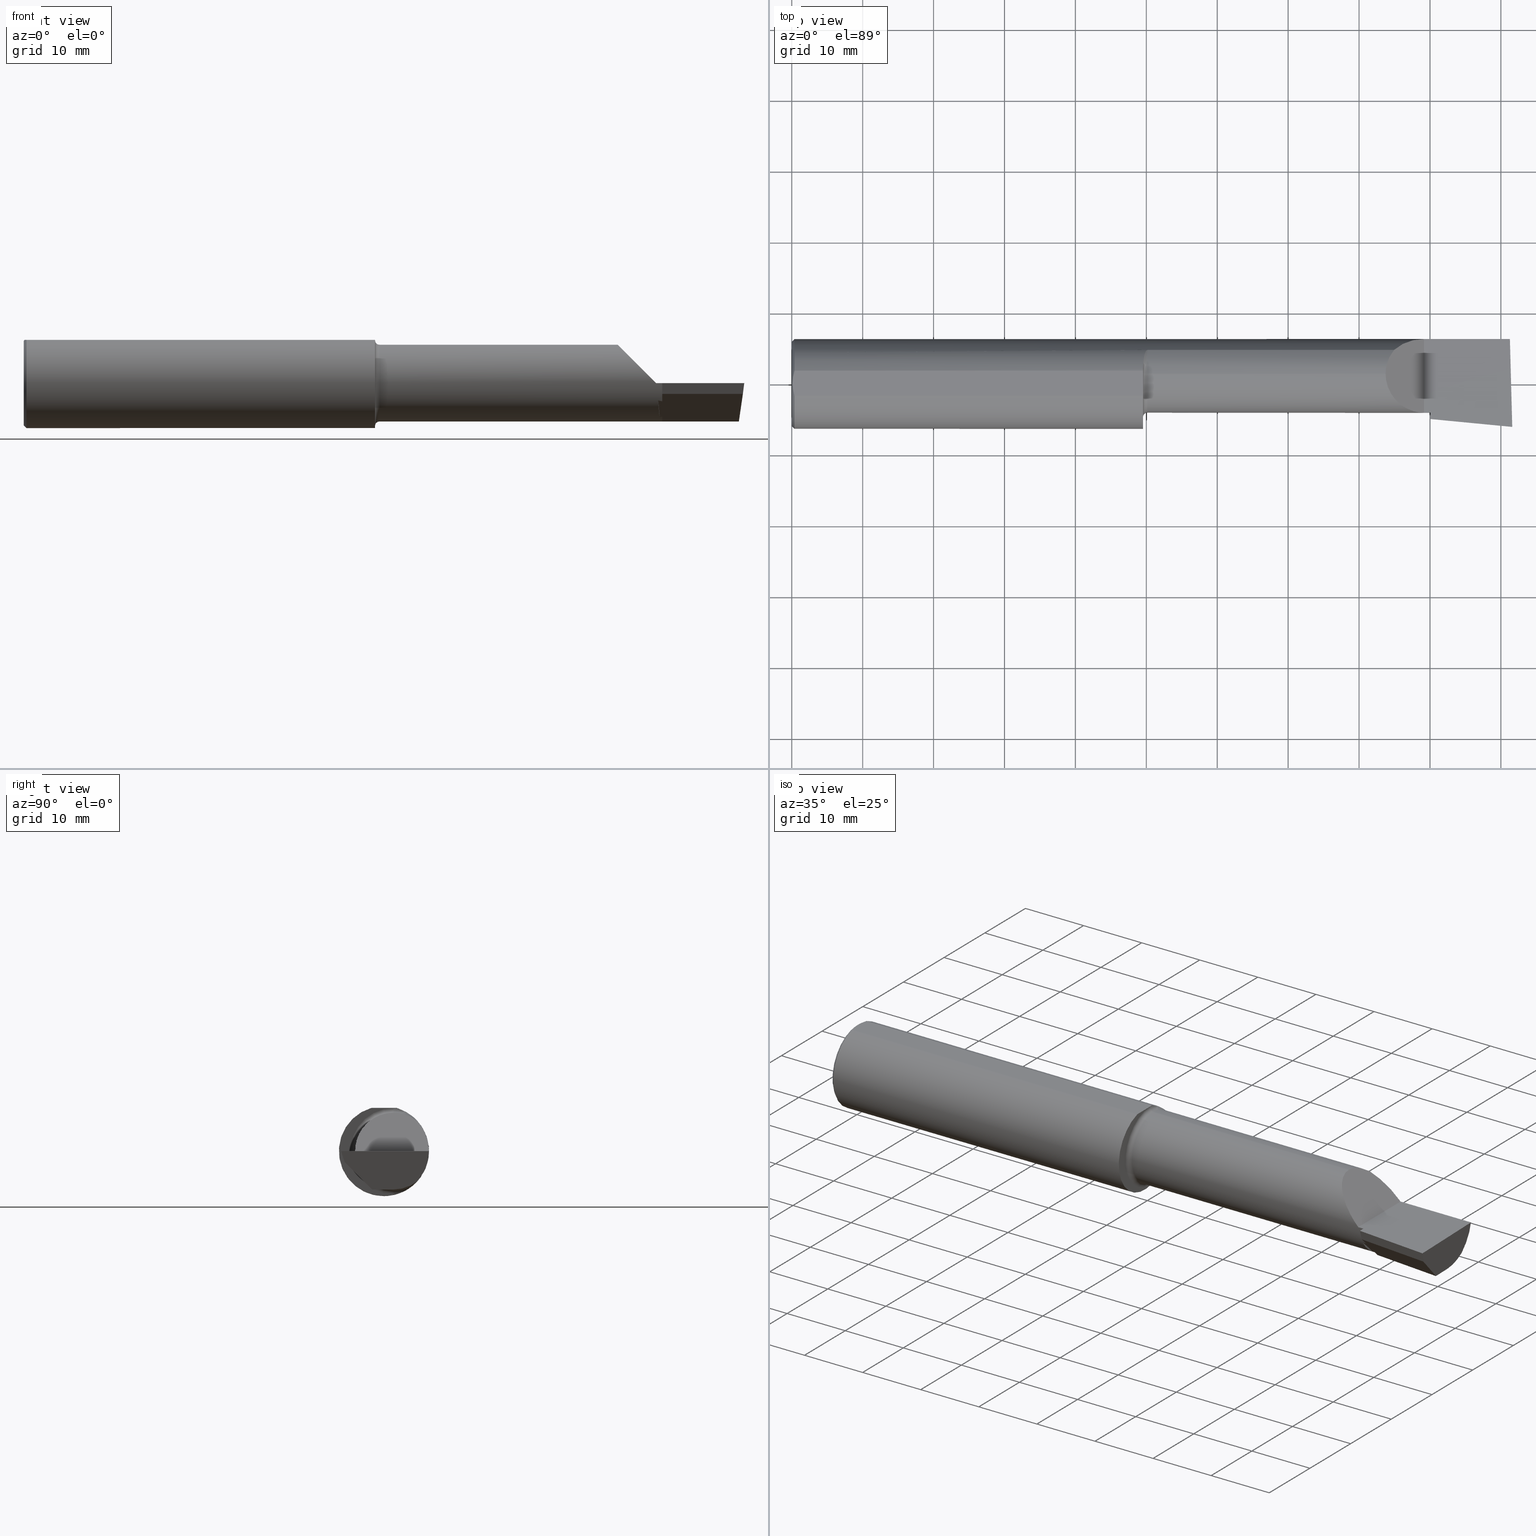
[diagram: canonical four-view strip — front | top / right | iso, engineering-drawing reading convention]
A machine part, canonical four-view strip (front | top / right | iso — engineering-drawing reading convention). The complete STEP part file that produces these views, byte-faithful:
ISO-10303-21;
HEADER;
FILE_DESCRIPTION (( 'STEP AP203' ),
    '1' );
FILE_NAME ('212151-LHB4902000.STEP',
    '2024-08-27T21:23:20',
    ( '' ),
    ( '' ),
    'SwSTEP 2.0',
    'SolidWorks 2024',
    '' );
FILE_SCHEMA (( 'CONFIG_CONTROL_DESIGN' ));
ENDSEC;

DATA;
#1 = CIRCLE ( 'NONE', #27, 0.2131500000000002282 ) ;
#2 = CARTESIAN_POINT ( 'NONE',  ( 3.296849999999997394, 0.05299999999999998462, 0.2131500000000000894 ) ) ;
#3 = ORIENTED_EDGE ( 'NONE', *, *, #231, .F. ) ;
#4 = CYLINDRICAL_SURFACE ( 'NONE', #106, 0.2498499999999999888 ) ;
#5 = ORIENTED_EDGE ( 'NONE', *, *, #553, .F. ) ;
#6 = CC_DESIGN_APPROVAL ( #749, ( #204 ) ) ;
#7 = DIRECTION ( 'NONE',  ( -0.02677973311239342791, 0.9996413586354002678, -2.562123829027519895E-16 ) ) ;
#8 = EDGE_CURVE ( 'NONE', #708, #86, #109, .T. ) ;
#9 = CARTESIAN_POINT ( 'NONE',  ( 4.028162759442342811, -0.2374125321900709407, 0.2380275191859495543 ) ) ;
#10 = EDGE_LOOP ( 'NONE', ( #661, #247, #233, #287 ) ) ;
#11 = DIRECTION ( 'NONE',  ( 1.000000000000000000, 0.000000000000000000, 0.000000000000000000 ) ) ;
#12 = CARTESIAN_POINT ( 'NONE',  ( 0.000000000000000000, 0.000000000000000000, 0.000000000000000000 ) ) ;
#13 = VERTEX_POINT ( 'NONE', #49 ) ;
#14 = CARTESIAN_POINT ( 'NONE',  ( 1.970138573936399906, 0.1849738682364315823, -0.1679602226613267635 ) ) ;
#15 = ORIENTED_EDGE ( 'NONE', *, *, #587, .T. ) ;
#16 = AXIS2_PLACEMENT_3D ( 'NONE', #332, #43, #453 ) ;
#17 = CARTESIAN_POINT ( 'NONE',  ( 0.009312860630924867100, 0.04712480857212034135, 0.2398500000000000076 ) ) ;
#18 = AXIS2_PLACEMENT_3D ( 'NONE', #418, #716, #414 ) ;
#19 = EDGE_CURVE ( 'NONE', #726, #95, #284, .T. ) ;
#20 = CARTESIAN_POINT ( 'NONE',  ( 1.957341173198633433, 0.1582250006961543887, -0.1936724403215138446 ) ) ;
#21 = ORIENTED_EDGE ( 'NONE', *, *, #417, .F. ) ;
#22 = CARTESIAN_POINT ( 'NONE',  ( 3.531082512009719565, -0.04783050615766656910, -0.1877927888072083717 ) ) ;
#23 = ORIENTED_EDGE ( 'NONE', *, *, #732, .T. ) ;
#24 = EDGE_CURVE ( 'NONE', #134, #599, #90, .T. ) ;
#25 = CARTESIAN_POINT ( 'NONE',  ( 3.983858394183930063, -0.1964039090909503738, -0.1268853457175435906 ) ) ;
#26 = CARTESIAN_POINT ( 'NONE',  ( 1.975000000000000089, 0.05300000000000001238, -0.2381500000000001949 ) ) ;
#27 = AXIS2_PLACEMENT_3D ( 'NONE', #502, #608, #83 ) ;
#28 = ORIENTED_EDGE ( 'NONE', *, *, #19, .F. ) ;
#29 = DIRECTION ( 'NONE',  ( 0.000000000000000000, 0.000000000000000000, 1.000000000000000000 ) ) ;
#30 = VECTOR ( 'NONE', #754, 39.37007874015748143 ) ;
#31 = ORIENTED_EDGE ( 'NONE', *, *, #645, .F. ) ;
#32 = LINE ( 'NONE', #25, #100 ) ;
#33 = DIRECTION ( 'NONE',  ( -1.000000000000000000, -0.000000000000000000, -0.000000000000000000 ) ) ;
#34 = VECTOR ( 'NONE', #61, 39.37007874015748143 ) ;
#35 = ADVANCED_FACE ( 'NONE', ( #209 ), #516, .F. ) ;
#36 = ORIENTED_EDGE ( 'NONE', *, *, #417, .T. ) ;
#37 = CARTESIAN_POINT ( 'NONE',  ( 1.950000000000000178, 0.000000000000000000, 0.000000000000000000 ) ) ;
#38 = DIRECTION ( 'NONE',  ( -0.000000000000000000, 0.000000000000000000, 1.000000000000000000 ) ) ;
#39 = EDGE_CURVE ( 'NONE', #13, #306, #517, .T. ) ;
#40 = ORIENTED_EDGE ( 'NONE', *, *, #553, .T. ) ;
#41 = DIRECTION ( 'NONE',  ( 0.000000000000000000, 0.000000000000000000, 1.000000000000000000 ) ) ;
#42 = DIRECTION ( 'NONE',  ( 0.000000000000000000, 0.000000000000000000, 1.000000000000000000 ) ) ;
#43 = DIRECTION ( 'NONE',  ( 0.000000000000000000, -1.000000000000000000, 0.000000000000000000 ) ) ;
#44 = ADVANCED_FACE ( 'NONE', ( #699 ), #156, .F. ) ;
#45 = DIRECTION ( 'NONE',  ( 0.000000000000000000, 0.000000000000000000, 1.000000000000000000 ) ) ;
#46 = CARTESIAN_POINT ( 'NONE',  ( 3.544999999999999485, -0.1345157694617464539, -0.1013447517297721839 ) ) ;
#47 = CALENDAR_DATE ( 2024, 27, 8 ) ;
#48 = EDGE_CURVE ( 'NONE', #313, #345, #747, .T. ) ;
#49 = CARTESIAN_POINT ( 'NONE',  ( 1.950000000000000178, 0.08036415094339534326, -0.2365726648265753795 ) ) ;
#50 = PERSON_AND_ORGANIZATION ( #492, #60 ) ;
#51 = CARTESIAN_POINT ( 'NONE',  ( 1.975000000000000089, 0.1868028301886779929, 0.1659208399614101603 ) ) ;
#52 = LINE ( 'NONE', #514, #190 ) ;
#53 = PERSON_AND_ORGANIZATION ( #492, #60 ) ;
#54 = VECTOR ( 'NONE', #595, 39.37007874015748143 ) ;
#55 = VECTOR ( 'NONE', #425, 39.37007874015748143 ) ;
#56 = CARTESIAN_POINT ( 'NONE',  ( 3.965646124279056828, 0.1021668565906567044, -0.2131500000000000339 ) ) ;
#57 =( BOUNDED_CURVE ( )  B_SPLINE_CURVE ( 3, ( #199, #194, #427, #22 ),
 .UNSPECIFIED., .F., .T. ) 
 B_SPLINE_CURVE_WITH_KNOTS ( ( 4, 4 ),
 ( 3.425081864342414573, 3.440661644967334176 ),
 .UNSPECIFIED. ) 
 CURVE ( )  GEOMETRIC_REPRESENTATION_ITEM ( )  RATIONAL_B_SPLINE_CURVE ( ( 1.000000000000000000, 0.9999797726385939445, 0.9999797726385939445, 1.000000000000000000 ) ) 
 REPRESENTATION_ITEM ( '' )  );
#58 = ORIENTED_EDGE ( 'NONE', *, *, #255, .T. ) ;
#59 = AXIS2_PLACEMENT_3D ( 'NONE', #686, #214, #38 ) ;
#60 = ORGANIZATION ( 'UNSPECIFIED', 'UNSPECIFIED', '' ) ;
#61 = DIRECTION ( 'NONE',  ( 0.000000000000000000, -0.7025528302622683352, 0.7116315905652843554 ) ) ;
#62 =( BOUNDED_CURVE ( )  B_SPLINE_CURVE ( 3, ( #155, #262, #624, #404 ),
 .UNSPECIFIED., .F., .F. ) 
 B_SPLINE_CURVE_WITH_KNOTS ( ( 4, 4 ),
 ( 0.6220170400679905232, 1.348282100702874908 ),
 .UNSPECIFIED. ) 
 CURVE ( )  GEOMETRIC_REPRESENTATION_ITEM ( )  RATIONAL_B_SPLINE_CURVE ( ( 1.000000000000000000, 0.9565258159410993111, 0.9565258159410993111, 1.000000000000000000 ) ) 
 REPRESENTATION_ITEM ( '' )  );
#63 = ORIENTED_EDGE ( 'NONE', *, *, #65, .F. ) ;
#64 = DIRECTION ( 'NONE',  ( 1.000000000000000000, 0.000000000000000000, 0.000000000000000000 ) ) ;
#65 = EDGE_CURVE ( 'NONE', #300, #619, #631, .T. ) ;
#66 = CARTESIAN_POINT ( 'NONE',  ( 3.544999999999999485, -0.1345157694617464539, -0.1013447517297721839 ) ) ;
#67 = EDGE_LOOP ( 'NONE', ( #77, #742, #625, #112 ) ) ;
#68 = PLANE ( 'NONE',  #482 ) ;
#69 = AXIS2_PLACEMENT_3D ( 'NONE', #717, #147, #133 ) ;
#70 = CARTESIAN_POINT ( 'NONE',  ( 3.522499172395930245, -0.1369718963205479589, -0.09666230448512491691 ) ) ;
#71 = VERTEX_POINT ( 'NONE', #46 ) ;
#72 = VECTOR ( 'NONE', #515, 39.37007874015748143 ) ;
#73 = DIRECTION ( 'NONE',  ( 0.000000000000000000, 0.000000000000000000, -1.000000000000000000 ) ) ;
#74 = CARTESIAN_POINT ( 'NONE',  ( 1.962765002235293599, 0.1743275501927397109, 0.1790622127600486335 ) ) ;
#75 = EDGE_LOOP ( 'NONE', ( #644, #368, #550, #201, #484, #242, #657, #559 ) ) ;
#76 = LINE ( 'NONE', #310, #273 ) ;
#77 = ORIENTED_EDGE ( 'NONE', *, *, #402, .F. ) ;
#78 = DIRECTION ( 'NONE',  ( 0.9953961983671787417, -0.09584575252022418945, -1.501092988330048720E-16 ) ) ;
#79 = CIRCLE ( 'NONE', #347, 0.2498499999999999888 ) ;
#80 = DIRECTION ( 'NONE',  ( 0.000000000000000000, 0.000000000000000000, -1.000000000000000000 ) ) ;
#81 = CARTESIAN_POINT ( 'NONE',  ( 0.01181966702888968997, 0.05862357455657477706, 0.2398500000000000354 ) ) ;
#82 = ORIENTED_EDGE ( 'NONE', *, *, #677, .T. ) ;
#83 = DIRECTION ( 'NONE',  ( 0.000000000000000000, 0.000000000000000000, 1.000000000000000000 ) ) ;
#84 = ORIENTED_EDGE ( 'NONE', *, *, #446, .F. ) ;
#85 = CARTESIAN_POINT ( 'NONE',  ( 0.004999999999999696527, 5.665694022114171174E-17, 0.2398500000000000076 ) ) ;
#86 = VERTEX_POINT ( 'NONE', #275 ) ;
#87 = DIRECTION ( 'NONE',  ( 0.000000000000000000, 0.000000000000000000, 1.000000000000000000 ) ) ;
#88 = EDGE_CURVE ( 'NONE', #609, #708, #52, .T. ) ;
#89 = FACE_OUTER_BOUND ( 'NONE', #666, .T. ) ;
#90 = CIRCLE ( 'NONE', #578, 0.2498499999999999888 ) ;
#91 = ORIENTED_EDGE ( 'NONE', *, *, #431, .F. ) ;
#92 = CARTESIAN_POINT ( 'NONE',  ( 0.01499999999999998904, 0.06997856814768362022, 0.2398500000000000076 ) ) ;
#93 = EDGE_CURVE ( 'NONE', #609, #433, #217, .T. ) ;
#94 = CARTESIAN_POINT ( 'NONE',  ( 1.975000000000000089, 0.05299999999999998462, 0.000000000000000000 ) ) ;
#95 = VERTEX_POINT ( 'NONE', #340 ) ;
#96 = CARTESIAN_POINT ( 'NONE',  ( 3.296849999999997394, -0.07186037918017482151, 0.2131500000000001172 ) ) ;
#97 = FACE_OUTER_BOUND ( 'NONE', #377, .T. ) ;
#98 = ORIENTED_EDGE ( 'NONE', *, *, #719, .T. ) ;
#99 = EDGE_CURVE ( 'NONE', #71, #609, #635, .T. ) ;
#100 = VECTOR ( 'NONE', #684, 39.37007874015748854 ) ;
#101 = CARTESIAN_POINT ( 'NONE',  ( 3.519046046773248282, -0.1728339770796963881, -0.06000000000000012962 ) ) ;
#102 = DIRECTION ( 'NONE',  ( 0.000000000000000000, 1.000000000000000000, -1.138839417068643993E-16 ) ) ;
#103 = ADVANCED_FACE ( 'NONE', ( #221 ), #344, .F. ) ;
#104 = CARTESIAN_POINT ( 'NONE',  ( 0.000000000000000000, -0.06997856814768356470, 0.2398500000000000076 ) ) ;
#105 = DIRECTION ( 'NONE',  ( 0.000000000000000000, -0.3019700370129918543, 0.9533174165755979867 ) ) ;
#106 = AXIS2_PLACEMENT_3D ( 'NONE', #534, #415, #650 ) ;
#107 = SHAPE_DEFINITION_REPRESENTATION ( #541, #503 ) ;
#108 = CARTESIAN_POINT ( 'NONE',  ( 3.966986964385320835, 0.05211560253549539501, -0.2131499999999999784 ) ) ;
#109 = LINE ( 'NONE', #389, #356 ) ;
#110 = MECHANICAL_CONTEXT ( 'NONE', #294, 'mechanical' ) ;
#111 = PLANE ( 'NONE',  #497 ) ;
#112 = ORIENTED_EDGE ( 'NONE', *, *, #613, .T. ) ;
#113 = CALENDAR_DATE ( 2024, 27, 8 ) ;
#114 = AXIS2_PLACEMENT_3D ( 'NONE', #314, #557, #665 ) ;
#115 = LINE ( 'NONE', #298, #700 ) ;
#116 =( BOUNDED_CURVE ( )  B_SPLINE_CURVE ( 3, ( #184, #343, #128, #2 ),
 .UNSPECIFIED., .F., .F. ) 
 B_SPLINE_CURVE_WITH_KNOTS ( ( 4, 4 ),
 ( 5.604538515477342386, 6.283185307179586232 ),
 .UNSPECIFIED. ) 
 CURVE ( )  GEOMETRIC_REPRESENTATION_ITEM ( )  RATIONAL_B_SPLINE_CURVE ( ( 1.000000000000000000, 0.9619867256453018545, 0.9619867256453018545, 1.000000000000000000 ) ) 
 REPRESENTATION_ITEM ( '' )  );
#117 = ORIENTED_EDGE ( 'NONE', *, *, #121, .T. ) ;
#118 = LINE ( 'NONE', #590, #34 ) ;
#119 = CC_DESIGN_PERSON_AND_ORGANIZATION_ASSIGNMENT ( #762, #460, ( #649 ) ) ;
#120 = EDGE_LOOP ( 'NONE', ( #161, #420, #679, #571, #731, #705 ) ) ;
#121 = EDGE_CURVE ( 'NONE', #313, #188, #640, .T. ) ;
#122 = LINE ( 'NONE', #237, #448 ) ;
#123 = APPROVAL_PERSON_ORGANIZATION ( #169, #459, #688 ) ;
#124 = DIRECTION ( 'NONE',  ( 0.7071067811865389130, 0.000000000000000000, -0.7071067811865560104 ) ) ;
#125 = EDGE_LOOP ( 'NONE', ( #718, #203, #496, #381, #586, #601, #359, #31, #40, #129 ) ) ;
#126 = CARTESIAN_POINT ( 'NONE',  ( 3.509999999999999787, 0.2498499999999998222, -6.245698675651498620E-17 ) ) ;
#127 = AXIS2_PLACEMENT_3D ( 'NONE', #576, #187, #419 ) ;
#128 = CARTESIAN_POINT ( 'NONE',  ( 3.296849999999997394, 0.1021668565906573567, 0.2131500000000001449 ) ) ;
#129 = ORIENTED_EDGE ( 'NONE', *, *, #732, .F. ) ;
#130 = APPROVAL_PERSON_ORGANIZATION ( #758, #749, #219 ) ;
#131 = CARTESIAN_POINT ( 'NONE',  ( 1.973547768521294987, 0.1868028301886782705, -0.1659208399614101603 ) ) ;
#132 = VECTOR ( 'NONE', #728, 39.37007874015748854 ) ;
#133 = DIRECTION ( 'NONE',  ( 0.000000000000000000, 0.000000000000000000, 1.000000000000000000 ) ) ;
#134 = VERTEX_POINT ( 'NONE', #466 ) ;
#135 = CYLINDRICAL_SURFACE ( 'NONE', #374, 0.2131500000000000894 ) ;
#136 = EDGE_LOOP ( 'NONE', ( #63, #140, #591, #603, #355, #724 ) ) ;
#137 = CARTESIAN_POINT ( 'NONE',  ( 1.965861643147096327, 0.1799299906519286341, 0.1733704358813192570 ) ) ;
#138 = LENGTH_MEASURE_WITH_UNIT ( LENGTH_MEASURE( 0.02539999999999999897 ), #385 );
#139 = CARTESIAN_POINT ( 'NONE',  ( 1.952700393434439796, 0.1312406203802477800, 0.2128933010837855688 ) ) ;
#140 = ORIENTED_EDGE ( 'NONE', *, *, #587, .F. ) ;
#141 =( NAMED_UNIT ( * ) PLANE_ANGLE_UNIT ( ) SI_UNIT ( $, .RADIAN. ) );
#142 = ORIENTED_EDGE ( 'NONE', *, *, #178, .T. ) ;
#143 = CIRCLE ( 'NONE', #338, 0.02499999999999990424 ) ;
#144 = LINE ( 'NONE', #380, #205 ) ;
#145 = ORIENTED_EDGE ( 'NONE', *, *, #259, .T. ) ;
#146 = EDGE_CURVE ( 'NONE', #734, #384, #116, .T. ) ;
#147 = DIRECTION ( 'NONE',  ( -1.000000000000000000, -0.000000000000000000, -0.000000000000000000 ) ) ;
#148 = EDGE_CURVE ( 'NONE', #13, #714, #322, .T. ) ;
#149 = CARTESIAN_POINT ( 'NONE',  ( 3.544999999999999929, 0.05299999999999998462, 0.000000000000000000 ) ) ;
#150 = FACE_OUTER_BOUND ( 'NONE', #120, .T. ) ;
#151 = AXIS2_PLACEMENT_3D ( 'NONE', #211, #622, #560 ) ;
#152 = VERTEX_POINT ( 'NONE', #474 ) ;
#153 = VECTOR ( 'NONE', #531, 39.37007874015748143 ) ;
#154 = EDGE_CURVE ( 'NONE', #714, #165, #585, .T. ) ;
#155 = CARTESIAN_POINT ( 'NONE',  ( 3.968970726278978400, 0.1868028301886789366, -0.1659208399614092722 ) ) ;
#156 = PLANE ( 'NONE',  #755 ) ;
#157 = APPROVAL_DATE_TIME ( #565, #749 ) ;
#158 = EDGE_CURVE ( 'NONE', #236, #71, #197, .T. ) ;
#159 = AXIS2_PLACEMENT_3D ( 'NONE', #447, #208, #210 ) ;
#160 = PLANE ( 'NONE',  #59 ) ;
#161 = ORIENTED_EDGE ( 'NONE', *, *, #39, .T. ) ;
#162 = VECTOR ( 'NONE', #318, 39.37007874015748143 ) ;
#163 = COORDINATED_UNIVERSAL_TIME_OFFSET ( 8, 0, .BEHIND. ) ;
#164 = DIRECTION ( 'NONE',  ( -0.9953961983671788527, 0.09584575252022363434, -3.696849664254116701E-16 ) ) ;
#165 = VERTEX_POINT ( 'NONE', #290 ) ;
#166 = COORDINATED_UNIVERSAL_TIME_OFFSET ( 8, 0, .BEHIND. ) ;
#167 = CARTESIAN_POINT ( 'NONE',  ( 2.760000000000000231, 0.1868028301886789366, -0.1659208399614092722 ) ) ;
#168 = CARTESIAN_POINT ( 'NONE',  ( 4.000000000000000000, 0.05299999999999996381, -0.2131499999999999784 ) ) ;
#169 = PERSON_AND_ORGANIZATION ( #492, #60 ) ;
#170 = EDGE_CURVE ( 'NONE', #616, #134, #115, .T. ) ;
#171 = TOROIDAL_SURFACE ( 'NONE', #266, 0.2381500000000001949, 0.02499999999999992159 ) ;
#172 = CARTESIAN_POINT ( 'NONE',  ( 0.01499999999999965423, -0.06997856814768402267, 0.2398500000000000076 ) ) ;
#173 = APPROVAL_DATE_TIME ( #520, #459 ) ;
#174 = ADVANCED_FACE ( 'NONE', ( #358 ), #286, .F. ) ;
#175 = CARTESIAN_POINT ( 'NONE',  ( 3.968970726278978400, 0.1868028301886789366, -0.1659208399614092722 ) ) ;
#176 = EDGE_LOOP ( 'NONE', ( #91, #36, #481, #422, #582, #535, #309, #413, #638, #254, #435, #180, #15 ) ) ;
#177 = AXIS2_PLACEMENT_3D ( 'NONE', #614, #325, #548 ) ;
#178 = EDGE_CURVE ( 'NONE', #244, #616, #235, .T. ) ;
#179 = CARTESIAN_POINT ( 'NONE',  ( 0.004999999999999962808, -0.01183939972798750580, 0.2398500000000000076 ) ) ;
#180 = ORIENTED_EDGE ( 'NONE', *, *, #402, .T. ) ;
#181 = B_SPLINE_CURVE_WITH_KNOTS ( 'NONE', 3,
 ( #363, #602, #611, #321, #139, #664, #669, #483, #74, #137, #436, #308, #678, #316, #383, #494 ),
 .UNSPECIFIED., .F., .F.,
 ( 4, 2, 2, 2, 2, 2, 2, 4 ),
 ( 0.0001284169230012233967, 0.0009841683951816670127, 0.001839919867362110493, 0.002695671339542555275, 0.003123547075632775605, 0.003337484943677882301, 0.003444453877700434565, 0.003551422811722986829 ),
 .UNSPECIFIED. ) ;
#182 = CARTESIAN_POINT ( 'NONE',  ( 7.089685198749692867E-32, 0.2498499999999999610, 4.685946446163635703E-16 ) ) ;
#183 = EDGE_CURVE ( 'NONE', #317, #236, #271, .T. ) ;
#184 = CARTESIAN_POINT ( 'NONE',  ( 3.344079160038590626, 0.1868028301886802411, 0.1659208399614079676 ) ) ;
#185 = ORIENTED_EDGE ( 'NONE', *, *, #259, .F. ) ;
#186 = CARTESIAN_POINT ( 'NONE',  ( 1.961285743882607902, 0.1704402150608101962, -0.1827701868778709715 ) ) ;
#187 = DIRECTION ( 'NONE',  ( -1.000000000000000000, -0.000000000000000000, -0.000000000000000000 ) ) ;
#188 = VERTEX_POINT ( 'NONE', #710 ) ;
#189 = CARTESIAN_POINT ( 'NONE',  ( 4.000000000000001776, -0.2381500000000004447, 4.609993489308444058E-16 ) ) ;
#190 = VECTOR ( 'NONE', #751, 39.37007874015748143 ) ;
#191 = DIRECTION ( 'NONE',  ( 1.000000000000000000, 0.000000000000000000, 0.000000000000000000 ) ) ;
#192 = ORIENTED_EDGE ( 'NONE', *, *, #337, .F. ) ;
#193 = DIRECTION ( 'NONE',  ( 0.000000000000000000, 0.000000000000000000, 1.000000000000000000 ) ) ;
#194 = CARTESIAN_POINT ( 'NONE',  ( 3.540481425188584552, -0.04977693083852395561, -0.1867379188486350539 ) ) ;
#195 = ORIENTED_EDGE ( 'NONE', *, *, #703, .T. ) ;
#196 = CARTESIAN_POINT ( 'NONE',  ( 0.01499999999999965423, -0.06997856814768402267, 0.2398500000000000076 ) ) ;
#197 =( BOUNDED_CURVE ( )  B_SPLINE_CURVE ( 3, ( #637, #295, #471, #66 ),
 .UNSPECIFIED., .F., .T. ) 
 B_SPLINE_CURVE_WITH_KNOTS ( ( 4, 4 ),
 ( 2.833296237007180363, 2.858103442837171659 ),
 .UNSPECIFIED. ) 
 CURVE ( )  GEOMETRIC_REPRESENTATION_ITEM ( )  RATIONAL_B_SPLINE_CURVE ( ( 1.000000000000000000, 0.9999487175357286706, 0.9999487175357286706, 1.000000000000000000 ) ) 
 REPRESENTATION_ITEM ( '' )  );
#198 =( GEOMETRIC_REPRESENTATION_CONTEXT ( 3 ) GLOBAL_UNCERTAINTY_ASSIGNED_CONTEXT ( ( #673 ) ) GLOBAL_UNIT_ASSIGNED_CONTEXT ( ( #735, #141, #439 ) ) REPRESENTATION_CONTEXT ( 'NONE', 'WORKASPACE' ) );
#199 = CARTESIAN_POINT ( 'NONE',  ( 3.544999999999999929, -0.05074392122494208318, -0.1861991442216451575 ) ) ;
#200 = CARTESIAN_POINT ( 'NONE',  ( 0.000000000000000000, 0.05300000000000001238, -0.2131500000000000894 ) ) ;
#201 = ORIENTED_EDGE ( 'NONE', *, *, #158, .F. ) ;
#202 = CARTESIAN_POINT ( 'NONE',  ( 0.000000000000000000, 0.05299999999999998462, 0.000000000000000000 ) ) ;
#203 = ORIENTED_EDGE ( 'NONE', *, *, #753, .T. ) ;
#204 = SECURITY_CLASSIFICATION ( '', '', #227 ) ;
#205 = VECTOR ( 'NONE', #554, 39.37007874015748143 ) ;
#206 = ADVANCED_FACE ( 'NONE', ( #704 ), #4, .T. ) ;
#207 = CARTESIAN_POINT ( 'NONE',  ( 0.01499999999999998904, 0.000000000000000000, 0.000000000000000000 ) ) ;
#208 = DIRECTION ( 'NONE',  ( -0.000000000000000000, 2.565624566557734573E-16, 1.000000000000000000 ) ) ;
#209 = FACE_OUTER_BOUND ( 'NONE', #490, .T. ) ;
#210 = DIRECTION ( 'NONE',  ( 0.000000000000000000, -1.000000000000000000, 2.565624566557734573E-16 ) ) ;
#211 = CARTESIAN_POINT ( 'NONE',  ( 1.950000000000000178, 0.05299999999999998462, 0.000000000000000000 ) ) ;
#212 = VECTOR ( 'NONE', #600, 39.37007874015748143 ) ;
#213 = DIRECTION ( 'NONE',  ( -1.000000000000000000, -0.000000000000000000, -0.000000000000000000 ) ) ;
#214 = DIRECTION ( 'NONE',  ( -1.000000000000000000, 0.000000000000000000, -0.000000000000000000 ) ) ;
#215 = EDGE_LOOP ( 'NONE', ( #739, #671, #391 ) ) ;
#216 = CARTESIAN_POINT ( 'NONE',  ( 3.544999999999999929, -0.02413689554465599241, -0.2131499999999999506 ) ) ;
#217 = LINE ( 'NONE', #401, #683 ) ;
#218 = CIRCLE ( 'NONE', #525, 0.2131499999999999784 ) ;
#219 = APPROVAL_ROLE ( '' ) ;
#220 = LINE ( 'NONE', #167, #393 ) ;
#221 = FACE_OUTER_BOUND ( 'NONE', #522, .T. ) ;
#222 = VECTOR ( 'NONE', #335, 39.37007874015748143 ) ;
#223 = ADVANCED_FACE ( 'NONE', ( #303 ), #111, .T. ) ;
#224 = DIRECTION ( 'NONE',  ( 0.000000000000000000, 0.000000000000000000, -1.000000000000000000 ) ) ;
#225 = DIRECTION ( 'NONE',  ( 0.000000000000000000, 0.000000000000000000, 1.000000000000000000 ) ) ;
#226 = EDGE_CURVE ( 'NONE', #540, #734, #348, .T. ) ;
#227 = SECURITY_CLASSIFICATION_LEVEL ( 'unclassified' ) ;
#228 = CARTESIAN_POINT ( 'NONE',  ( 0.009274236576542723223, -0.04692405468904862348, 0.2398500000000000354 ) ) ;
#229 = ORIENTED_EDGE ( 'NONE', *, *, #633, .T. ) ;
#230 = CC_DESIGN_PERSON_AND_ORGANIZATION_ASSIGNMENT ( #53, #577, ( #204 ) ) ;
#231 = EDGE_CURVE ( 'NONE', #599, #366, #594, .T. ) ;
#232 = DIRECTION ( 'NONE',  ( -1.512967610748942321E-16, 0.000000000000000000, -1.000000000000000000 ) ) ;
#233 = ORIENTED_EDGE ( 'NONE', *, *, #93, .F. ) ;
#234 = EDGE_CURVE ( 'NONE', #505, #152, #118, .T. ) ;
#235 = CIRCLE ( 'NONE', #438, 0.2348499999999996424 ) ;
#236 = VERTEX_POINT ( 'NONE', #477 ) ;
#237 = CARTESIAN_POINT ( 'NONE',  ( 3.519046046773248282, -0.1728339770796963881, -0.06000000000000012962 ) ) ;
#238 = DIRECTION ( 'NONE',  ( 0.9927123040216839778, 0.02659410830638314280, -0.1175373763844856645 ) ) ;
#239 = ORIENTED_EDGE ( 'NONE', *, *, #226, .F. ) ;
#240 = LINE ( 'NONE', #648, #153 ) ;
#241 = CARTESIAN_POINT ( 'NONE',  ( 3.544999999999999929, -0.1601499999999999868, 4.685946446163635703E-16 ) ) ;
#242 = ORIENTED_EDGE ( 'NONE', *, *, #292, .F. ) ;
#243 = DIRECTION ( 'NONE',  ( -0.7071067811865513475, 0.000000000000000000, 0.7071067811865436870 ) ) ;
#244 = VERTEX_POINT ( 'NONE', #733 ) ;
#245 = CIRCLE ( 'NONE', #18, 0.2498499999999999888 ) ;
#246 = DIRECTION ( 'NONE',  ( 0.000000000000000000, 0.000000000000000000, 1.000000000000000000 ) ) ;
#247 = ORIENTED_EDGE ( 'NONE', *, *, #307, .F. ) ;
#248 = CARTESIAN_POINT ( 'NONE',  ( 0.01499999999999998904, 0.000000000000000000, 0.000000000000000000 ) ) ;
#249 = ORIENTED_EDGE ( 'NONE', *, *, #154, .T. ) ;
#250 = LINE ( 'NONE', #487, #132 ) ;
#251 = ORIENTED_EDGE ( 'NONE', *, *, #670, .F. ) ;
#252 = VECTOR ( 'NONE', #444, 39.37007874015748143 ) ;
#253 = CARTESIAN_POINT ( 'NONE',  ( 1.950000000000000178, 0.05299999999999998462, 0.2381500000000001949 ) ) ;
#254 = ORIENTED_EDGE ( 'NONE', *, *, #302, .T. ) ;
#255 = EDGE_CURVE ( 'NONE', #366, #722, #555, .T. ) ;
#256 = CC_DESIGN_APPROVAL ( #459, ( #695 ) ) ;
#257 = CARTESIAN_POINT ( 'NONE',  ( 0.004999999999999972349, 0.01185123536186988465, 0.2398500000000000631 ) ) ;
#258 = ORIENTED_EDGE ( 'NONE', *, *, #362, .F. ) ;
#259 = EDGE_CURVE ( 'NONE', #306, #687, #143, .T. ) ;
#260 = CARTESIAN_POINT ( 'NONE',  ( 0.004999999999999696527, 5.665694022114171174E-17, 0.2398500000000000076 ) ) ;
#261 = FACE_OUTER_BOUND ( 'NONE', #445, .T. ) ;
#262 = CARTESIAN_POINT ( 'NONE',  ( 3.973345850378709798, 0.2278791102234772881, -0.1196748990301331472 ) ) ;
#263 = CC_DESIGN_DATE_AND_TIME_ASSIGNMENT ( #523, #336, ( #204 ) ) ;
#264 = EDGE_LOOP ( 'NONE', ( #711, #142 ) ) ;
#265 = LINE ( 'NONE', #372, #162 ) ;
#266 = AXIS2_PLACEMENT_3D ( 'NONE', #330, #455, #566 ) ;
#267 = PLANE ( 'NONE',  #159 ) ;
#268 = ORIENTED_EDGE ( 'NONE', *, *, #579, .T. ) ;
#269 = DIRECTION ( 'NONE',  ( -1.000000000000000000, -0.000000000000000000, -0.000000000000000000 ) ) ;
#270 = CARTESIAN_POINT ( 'NONE',  ( 7.089685198749692867E-32, -0.1601500000000000701, 4.685946446163635703E-16 ) ) ;
#271 =( BOUNDED_CURVE ( )  B_SPLINE_CURVE ( 3, ( #526, #760, #412, #70 ),
 .UNSPECIFIED., .F., .T. ) 
 B_SPLINE_CURVE_WITH_KNOTS ( ( 4, 4 ),
 ( 5.205137849474837708, 5.812503257434991077 ),
 .UNSPECIFIED. ) 
 CURVE ( )  GEOMETRIC_REPRESENTATION_ITEM ( )  RATIONAL_B_SPLINE_CURVE ( ( 1.000000000000000000, 0.9694944665783499227, 0.9694944665783499227, 1.000000000000000000 ) ) 
 REPRESENTATION_ITEM ( '' )  );
#272 = DIRECTION ( 'NONE',  ( 0.000000000000000000, -1.138839417068643993E-16, -1.000000000000000000 ) ) ;
#273 = VECTOR ( 'NONE', #656, 39.37007874015748143 ) ;
#274 = DIRECTION ( 'NONE',  ( 0.06836202603457078308, 0.7099667855717584075, 0.7009092642998475675 ) ) ;
#275 = CARTESIAN_POINT ( 'NONE',  ( 3.970126340504450457, -0.06507190623553232856, -0.2131499999999999506 ) ) ;
#276 = PERSON_AND_ORGANIZATION ( #492, #60 ) ;
#277 = ADVANCED_FACE ( 'NONE', ( #432 ), #606, .T. ) ;
#278 = CARTESIAN_POINT ( 'NONE',  ( 3.509999999999999787, 0.2498499999999998222, -6.245698675651498620E-17 ) ) ;
#279 = CARTESIAN_POINT ( 'NONE',  ( 3.544999999999999929, -0.2196470971618798007, -0.01511331185988431559 ) ) ;
#280 = PERSON_AND_ORGANIZATION_ROLE ( 'design_supplier' ) ;
#281 = ADVANCED_FACE ( 'NONE', ( #89 ), #299, .F. ) ;
#282 = CARTESIAN_POINT ( 'NONE',  ( 3.544999999999999929, -0.1753330585328637670, -0.06000000000000013656 ) ) ;
#283 = DIRECTION ( 'NONE',  ( 0.09140971883575742252, 0.9493262270931227542, 0.3007057995042739518 ) ) ;
#284 = CIRCLE ( 'NONE', #16, 0.02499999999999990424 ) ;
#285 = CALENDAR_DATE ( 2024, 27, 8 ) ;
#286 = PLANE ( 'NONE',  #533 ) ;
#287 = ORIENTED_EDGE ( 'NONE', *, *, #88, .T. ) ;
#288 = ADVANCED_FACE ( 'NONE', ( #440 ), #375, .F. ) ;
#289 = CARTESIAN_POINT ( 'NONE',  ( 0.000000000000000000, 0.000000000000000000, 0.000000000000000000 ) ) ;
#290 = CARTESIAN_POINT ( 'NONE',  ( 1.950000000000000178, 0.06997856814768363409, 0.2398500000000000076 ) ) ;
#291 = VERTEX_POINT ( 'NONE', #241 ) ;
#292 = EDGE_CURVE ( 'NONE', #152, #317, #57, .T. ) ;
#293 = AXIS2_PLACEMENT_3D ( 'NONE', #289, #568, #465 ) ;
#294 = APPLICATION_CONTEXT ( 'configuration controlled 3d designs of mechanical parts and assemblies' ) ;
#295 = CARTESIAN_POINT ( 'NONE',  ( 3.530304439966509999, -0.1361725685965918531, -0.09823323541120163038 ) ) ;
#296 = ORIENTED_EDGE ( 'NONE', *, *, #697, .F. ) ;
#297 = LINE ( 'NONE', #182, #55 ) ;
#298 = CARTESIAN_POINT ( 'NONE',  ( 0.01499999999999998904, 0.000000000000000000, -0.2498499999999999888 ) ) ;
#299 = TOROIDAL_SURFACE ( 'NONE', #69, 0.2381500000000001949, 0.02499999999999992159 ) ;
#300 = VERTEX_POINT ( 'NONE', #423 ) ;
#301 = CARTESIAN_POINT ( 'NONE',  ( 3.544999999999999929, -0.2043384830701200638, 0.000000000000000000 ) ) ;
#302 = EDGE_CURVE ( 'NONE', #519, #540, #181, .T. ) ;
#303 = FACE_OUTER_BOUND ( 'NONE', #696, .T. ) ;
#304 = ORIENTED_EDGE ( 'NONE', *, *, #39, .F. ) ;
#305 = FACE_OUTER_BOUND ( 'NONE', #437, .T. ) ;
#306 = VERTEX_POINT ( 'NONE', #542 ) ;
#307 = EDGE_CURVE ( 'NONE', #433, #619, #723, .T. ) ;
#308 = CARTESIAN_POINT ( 'NONE',  ( 1.969294329172793789, 0.1841965204963175451, 0.1688138510234148959 ) ) ;
#309 = ORIENTED_EDGE ( 'NONE', *, *, #579, .F. ) ;
#310 = CARTESIAN_POINT ( 'NONE',  ( 0.000000000000000000, 0.06997856814768362022, 0.2398500000000000076 ) ) ;
#311 = ORIENTED_EDGE ( 'NONE', *, *, #24, .T. ) ;
#312 = CARTESIAN_POINT ( 'NONE',  ( 3.531082512009719565, -0.04783050615766656910, -0.1877927888072083717 ) ) ;
#313 = VERTEX_POINT ( 'NONE', #675 ) ;
#314 = CARTESIAN_POINT ( 'NONE',  ( 0.000000000000000000, 0.000000000000000000, 0.000000000000000000 ) ) ;
#315 = EDGE_LOOP ( 'NONE', ( #651, #324, #647, #258 ) ) ;
#316 = CARTESIAN_POINT ( 'NONE',  ( 1.972248316546590496, 0.1862833954073875031, 0.1665066509556023255 ) ) ;
#317 = VERTEX_POINT ( 'NONE', #312 ) ;
#318 = DIRECTION ( 'NONE',  ( -0.000000000000000000, 1.000000000000000000, -2.565624566557734573E-16 ) ) ;
#319 = ORIENTED_EDGE ( 'NONE', *, *, #337, .T. ) ;
#320 = LOCAL_TIME ( 14, 23, 20.00000000000000000, #511 ) ;
#321 = CARTESIAN_POINT ( 'NONE',  ( 1.951680899895053223, 0.1215019751025619016, 0.2186055937858619458 ) ) ;
#322 = CIRCLE ( 'NONE', #653, 0.2498499999999999888 ) ;
#323 = DIRECTION ( 'NONE',  ( -1.000000000000000000, -0.000000000000000000, -0.000000000000000000 ) ) ;
#324 = ORIENTED_EDGE ( 'NONE', *, *, #99, .T. ) ;
#325 = DIRECTION ( 'NONE',  ( -1.000000000000000000, -0.000000000000000000, -0.000000000000000000 ) ) ;
#326 = LOCAL_TIME ( 14, 23, 20.00000000000000000, #748 ) ;
#327 = DIRECTION ( 'NONE',  ( 0.000000000000000000, 0.000000000000000000, 1.000000000000000000 ) ) ;
#328 = ORIENTED_EDGE ( 'NONE', *, *, #183, .F. ) ;
#329 = DIRECTION ( 'NONE',  ( 0.000000000000000000, 0.000000000000000000, 1.000000000000000000 ) ) ;
#330 = CARTESIAN_POINT ( 'NONE',  ( 1.975000000000000089, 0.05299999999999998462, 0.000000000000000000 ) ) ;
#331 = AXIS2_PLACEMENT_3D ( 'NONE', #680, #382, #87 ) ;
#332 = CARTESIAN_POINT ( 'NONE',  ( 1.975000000000000089, 0.05299999999999998462, 0.2381500000000001949 ) ) ;
#333 = COORDINATED_UNIVERSAL_TIME_OFFSET ( 8, 0, .BEHIND. ) ;
#334 = DIRECTION ( 'NONE',  ( -1.000000000000000000, -0.000000000000000000, -0.000000000000000000 ) ) ;
#335 = DIRECTION ( 'NONE',  ( 0.02677973311239339668, -0.9996413586354002678, -3.995712686884936666E-18 ) ) ;
#336 = DATE_TIME_ROLE ( 'classification_date' ) ;
#337 = EDGE_CURVE ( 'NONE', #244, #366, #250, .T. ) ;
#338 = AXIS2_PLACEMENT_3D ( 'NONE', #26, #491, #29 ) ;
#339 = PLANE ( 'NONE',  #581 ) ;
#340 = CARTESIAN_POINT ( 'NONE',  ( 1.975000000000000089, 0.05299999999999998462, 0.2131500000000002282 ) ) ;
#341 = CARTESIAN_POINT ( 'NONE',  ( 1.969285582744839003, 0.1841881072713794365, -0.1688230283719365232 ) ) ;
#342 = APPROVAL_STATUS ( 'not_yet_approved' ) ;
#343 = CARTESIAN_POINT ( 'NONE',  ( 3.313215146136121891, 0.1485302233682066486, 0.1967848538638755362 ) ) ;
#344 = TOROIDAL_SURFACE ( 'NONE', #127, 0.2381500000000001949, 0.02499999999999992159 ) ;
#345 = VERTEX_POINT ( 'NONE', #549 ) ;
#346 = PERSON_AND_ORGANIZATION ( #492, #60 ) ;
#347 = AXIS2_PLACEMENT_3D ( 'NONE', #37, #213, #41 ) ;
#348 = LINE ( 'NONE', #464, #676 ) ;
#349 = ORIENTED_EDGE ( 'NONE', *, *, #529, .F. ) ;
#350 = DIRECTION ( 'NONE',  ( -1.000000000000000000, -0.000000000000000000, -0.000000000000000000 ) ) ;
#351 = ORIENTED_EDGE ( 'NONE', *, *, #454, .T. ) ;
#352 = APPROVAL_PERSON_ORGANIZATION ( #276, #668, #752 ) ;
#353 = CARTESIAN_POINT ( 'NONE',  ( 1.950000000000000178, 0.05299999999999998462, 0.000000000000000000 ) ) ;
#354 = CARTESIAN_POINT ( 'NONE',  ( 1.950000000000000178, 0.2998500000000000609, 0.2398499999999999799 ) ) ;
#355 = ORIENTED_EDGE ( 'NONE', *, *, #362, .T. ) ;
#356 = VECTOR ( 'NONE', #744, 39.37007874015748143 ) ;
#357 = CARTESIAN_POINT ( 'NONE',  ( 1.975000000000000089, 0.1868028301886779097, -0.1659208399614102436 ) ) ;
#358 = FACE_OUTER_BOUND ( 'NONE', #136, .T. ) ;
#359 = ORIENTED_EDGE ( 'NONE', *, *, #470, .F. ) ;
#360 = APPLICATION_CONTEXT ( 'configuration controlled 3d designs of mechanical parts and assemblies' ) ;
#361 = CARTESIAN_POINT ( 'NONE',  ( 3.509999999999999787, -0.2500000000000000555, -6.245698675651498620E-17 ) ) ;
#362 = EDGE_CURVE ( 'NONE', #291, #433, #144, .T. ) ;
#363 = CARTESIAN_POINT ( 'NONE',  ( 1.950000000000000178, 0.08036415094339534326, 0.2365726648265753795 ) ) ;
#364 = DIMENSIONAL_EXPONENTS ( 1.000000000000000000, 0.000000000000000000, 0.000000000000000000, 0.000000000000000000, 0.000000000000000000, 0.000000000000000000, 0.000000000000000000 ) ;
#365 = AXIS2_PLACEMENT_3D ( 'NONE', #94, #630, #45 ) ;
#366 = VERTEX_POINT ( 'NONE', #260 ) ;
#367 = CARTESIAN_POINT ( 'NONE',  ( 1.967016733372314530, 0.1817333077058755075, -0.1714754572696078894 ) ) ;
#368 = ORIENTED_EDGE ( 'NONE', *, *, #88, .F. ) ;
#369 = CARTESIAN_POINT ( 'NONE',  ( 4.001130543297605868, -0.2382588589380726651, -1.367634472223958767E-16 ) ) ;
#370 = ADVANCED_FACE ( 'NONE', ( #737 ), #741, .T. ) ;
#371 = EDGE_LOOP ( 'NONE', ( #5, #493, #239, #424 ) ) ;
#372 = CARTESIAN_POINT ( 'NONE',  ( 3.544999999999999929, 0.05299999999999996381, -0.2131499999999999784 ) ) ;
#373 = ORIENTED_EDGE ( 'NONE', *, *, #512, .T. ) ;
#374 = AXIS2_PLACEMENT_3D ( 'NONE', #202, #730, #329 ) ;
#375 = PLANE ( 'NONE',  #462 ) ;
#376 = EDGE_CURVE ( 'NONE', #71, #291, #524, .T. ) ;
#377 = EDGE_LOOP ( 'NONE', ( #663, #655, #351, #607 ) ) ;
#378 = CARTESIAN_POINT ( 'NONE',  ( 1.975000000000000089, 0.05300000000000001238, -0.2131500000000002282 ) ) ;
#379 = ORIENTED_EDGE ( 'NONE', *, *, #48, .F. ) ;
#380 = CARTESIAN_POINT ( 'NONE',  ( 3.544999999999999929, -0.2500000000000000555, -6.775237339413629936E-17 ) ) ;
#381 = ORIENTED_EDGE ( 'NONE', *, *, #183, .T. ) ;
#382 = DIRECTION ( 'NONE',  ( -1.000000000000000000, -0.000000000000000000, -0.000000000000000000 ) ) ;
#383 = CARTESIAN_POINT ( 'NONE',  ( 1.973549916698492668, 0.1868028301886780207, 0.1659208399614101603 ) ) ;
#384 = VERTEX_POINT ( 'NONE', #558 ) ;
#385 =( LENGTH_UNIT ( ) NAMED_UNIT ( * ) SI_UNIT ( $, .METRE. ) );
#386 = AXIS2_PLACEMENT_3D ( 'NONE', #567, #272, #102 ) ;
#387 = CARTESIAN_POINT ( 'NONE',  ( 3.988460977461673274, -0.06683733097719073146, -0.2131499999999999506 ) ) ;
#388 = AXIS2_PLACEMENT_3D ( 'NONE', #353, #421, #193 ) ;
#389 = CARTESIAN_POINT ( 'NONE',  ( 3.984159346317754036, -0.1618214701366293695, -0.1165188729350217778 ) ) ;
#390 = CARTESIAN_POINT ( 'NONE',  ( 3.544999999999999929, 0.05299999999999998462, 0.000000000000000000 ) ) ;
#391 = ORIENTED_EDGE ( 'NONE', *, *, #753, .F. ) ;
#392 = PERSON_AND_ORGANIZATION_ROLE ( 'creator' ) ;
#393 = VECTOR ( 'NONE', #33, 39.37007874015748143 ) ;
#394 = PLANE ( 'NONE',  #691 ) ;
#395 = CIRCLE ( 'NONE', #331, 0.2131500000000002282 ) ;
#396 = CC_DESIGN_PERSON_AND_ORGANIZATION_ASSIGNMENT ( #346, #392, ( #695 ) ) ;
#397 = CARTESIAN_POINT ( 'NONE',  ( 3.519046046773248282, -0.1728339770796963881, -0.06000000000000012962 ) ) ;
#398 = ADVANCED_FACE ( 'NONE', ( #743 ), #267, .F. ) ;
#399 = DATE_TIME_ROLE ( 'creation_date' ) ;
#400 = CARTESIAN_POINT ( 'NONE',  ( 1.975000000000000089, 0.1868028301886779097, -0.1659208399614102436 ) ) ;
#401 = CARTESIAN_POINT ( 'NONE',  ( 3.544999999999999929, -0.1952503421026562380, 0.002878732955684667853 ) ) ;
#402 = EDGE_CURVE ( 'NONE', #734, #527, #588, .T. ) ;
#403 = AXIS2_PLACEMENT_3D ( 'NONE', #618, #660, #246 ) ;
#404 = CARTESIAN_POINT ( 'NONE',  ( 3.986926801651458074, 0.2498499999999998500, -1.346424553798598529E-16 ) ) ;
#405 = CARTESIAN_POINT ( 'NONE',  ( 4.000317226026191442, -0.2499915017238489578, -1.366403949535045289E-16 ) ) ;
#406 = CC_DESIGN_PERSON_AND_ORGANIZATION_ASSIGNMENT ( #450, #280, ( #649 ) ) ;
#407 = CIRCLE ( 'NONE', #365, 0.2131500000000002282 ) ;
#408 = CARTESIAN_POINT ( 'NONE',  ( 1.950000000000000178, 0.000000000000000000, 0.000000000000000000 ) ) ;
#409 = APPROVAL_STATUS ( 'not_yet_approved' ) ;
#410 = CARTESIAN_POINT ( 'NONE',  ( 0.005880636388018911122, -0.02358947477502554638, 0.2398499999999999799 ) ) ;
#411 = AXIS2_PLACEMENT_3D ( 'NONE', #301, #11, #476 ) ;
#412 = CARTESIAN_POINT ( 'NONE',  ( 3.524413082451229418, -0.1170951804205965369, -0.1357263163794374117 ) ) ;
#413 = ORIENTED_EDGE ( 'NONE', *, *, #529, .T. ) ;
#414 = DIRECTION ( 'NONE',  ( 0.000000000000000000, 0.000000000000000000, 1.000000000000000000 ) ) ;
#415 = DIRECTION ( 'NONE',  ( -1.000000000000000000, -0.000000000000000000, -0.000000000000000000 ) ) ;
#416 = ORIENTED_EDGE ( 'NONE', *, *, #8, .T. ) ;
#417 = EDGE_CURVE ( 'NONE', #188, #472, #220, .T. ) ;
#418 = CARTESIAN_POINT ( 'NONE',  ( 0.01499999999999998904, 0.000000000000000000, 0.000000000000000000 ) ) ;
#419 = DIRECTION ( 'NONE',  ( 0.000000000000000000, 0.000000000000000000, 1.000000000000000000 ) ) ;
#420 = ORIENTED_EDGE ( 'NONE', *, *, #697, .T. ) ;
#421 = DIRECTION ( 'NONE',  ( -1.000000000000000000, -0.000000000000000000, -0.000000000000000000 ) ) ;
#422 = ORIENTED_EDGE ( 'NONE', *, *, #148, .T. ) ;
#423 = CARTESIAN_POINT ( 'NONE',  ( 3.986926801651458074, 0.2498499999999998500, -1.346424553798598529E-16 ) ) ;
#424 = ORIENTED_EDGE ( 'NONE', *, *, #454, .F. ) ;
#425 = DIRECTION ( 'NONE',  ( 1.000000000000000000, 0.000000000000000000, 0.000000000000000000 ) ) ;
#426 = ADVANCED_FACE ( 'NONE', ( #150 ), #160, .F. ) ;
#427 = CARTESIAN_POINT ( 'NONE',  ( 3.535842168685239706, -0.04880577283880162959, -0.1872691444557817719 ) ) ;
#428 = AXIS2_PLACEMENT_3D ( 'NONE', #689, #323, #327 ) ;
#429 = AXIS2_PLACEMENT_3D ( 'NONE', #207, #443, #80 ) ;
#430 = CARTESIAN_POINT ( 'NONE',  ( 0.000000000000000000, 0.000000000000000000, -0.2348499999999996424 ) ) ;
#431 = EDGE_CURVE ( 'NONE', #188, #300, #62, .T. ) ;
#432 = FACE_OUTER_BOUND ( 'NONE', #125, .T. ) ;
#433 = VERTEX_POINT ( 'NONE', #508 ) ;
#434 = CARTESIAN_POINT ( 'NONE',  ( 3.344079160038590626, 0.1868028301886802411, 0.1659208399614079676 ) ) ;
#435 = ORIENTED_EDGE ( 'NONE', *, *, #226, .T. ) ;
#436 = CARTESIAN_POINT ( 'NONE',  ( 1.967022161877249431, 0.1817412653940178591, 0.1714670312165150201 ) ) ;
#437 = EDGE_LOOP ( 'NONE', ( #501, #319, #58, #268, #469 ) ) ;
#438 = AXIS2_PLACEMENT_3D ( 'NONE', #642, #701, #225 ) ;
#439 =( NAMED_UNIT ( * ) SI_UNIT ( $, .STERADIAN. ) SOLID_ANGLE_UNIT ( ) );
#440 = FACE_OUTER_BOUND ( 'NONE', #264, .T. ) ;
#441 = ORIENTED_EDGE ( 'NONE', *, *, #48, .T. ) ;
#442 = EDGE_CURVE ( 'NONE', #86, #505, #746, .T. ) ;
#443 = DIRECTION ( 'NONE',  ( 1.000000000000000000, 0.000000000000000000, 0.000000000000000000 ) ) ;
#444 = DIRECTION ( 'NONE',  ( -1.000000000000000000, -0.000000000000000000, -0.000000000000000000 ) ) ;
#445 = EDGE_LOOP ( 'NONE', ( #192, #251, #690, #311, #538 ) ) ;
#446 = EDGE_CURVE ( 'NONE', #714, #599, #499, .T. ) ;
#447 = CARTESIAN_POINT ( 'NONE',  ( 4.000000000000000000, 0.05299999999999996381, -0.2131499999999999784 ) ) ;
#448 = VECTOR ( 'NONE', #539, 39.37007874015748143 ) ;
#449 = CARTESIAN_POINT ( 'NONE',  ( 0.01499999999999998904, 0.000000000000000000, 0.000000000000000000 ) ) ;
#450 = PERSON_AND_ORGANIZATION ( #492, #60 ) ;
#451 = ADVANCED_FACE ( 'NONE', ( #504 ), #394, .F. ) ;
#452 = CARTESIAN_POINT ( 'NONE',  ( 3.390325100969866945, 0.2278791102234777044, 0.1196748990301318705 ) ) ;
#453 = DIRECTION ( 'NONE',  ( 0.000000000000000000, 0.000000000000000000, -1.000000000000000000 ) ) ;
#454 = EDGE_CURVE ( 'NONE', #95, #540, #407, .T. ) ;
#455 = DIRECTION ( 'NONE',  ( -1.000000000000000000, -0.000000000000000000, -0.000000000000000000 ) ) ;
#456 = DIRECTION ( 'NONE',  ( 0.000000000000000000, 0.000000000000000000, 1.000000000000000000 ) ) ;
#457 = CALENDAR_DATE ( 2024, 27, 8 ) ;
#458 = CARTESIAN_POINT ( 'NONE',  ( 3.344079160038590626, 0.1868028301886802411, 0.1659208399614079676 ) ) ;
#459 = APPROVAL ( #342, 'UNSPECIFIED' ) ;
#460 = PERSON_AND_ORGANIZATION_ROLE ( 'creator' ) ;
#461 = CC_DESIGN_APPROVAL ( #668, ( #649 ) ) ;
#462 = AXIS2_PLACEMENT_3D ( 'NONE', #12, #191, #547 ) ;
#463 = CARTESIAN_POINT ( 'NONE',  ( 1.950000000000000178, 0.08036415094339534326, 0.2365726648265753795 ) ) ;
#464 = CARTESIAN_POINT ( 'NONE',  ( 2.760000000000000231, 0.1868028301886789366, 0.1659208399614092722 ) ) ;
#465 = DIRECTION ( 'NONE',  ( 1.000000000000000000, 0.000000000000000000, 0.000000000000000000 ) ) ;
#466 = CARTESIAN_POINT ( 'NONE',  ( 0.01499999999999998904, 0.000000000000000000, -0.2498499999999999888 ) ) ;
#467 = ORIENTED_EDGE ( 'NONE', *, *, #512, .F. ) ;
#468 = DIRECTION ( 'NONE',  ( -1.000000000000000000, 0.000000000000000000, 1.512967610748942321E-16 ) ) ;
#469 = ORIENTED_EDGE ( 'NONE', *, *, #170, .F. ) ;
#470 = EDGE_CURVE ( 'NONE', #479, #291, #628, .T. ) ;
#471 = CARTESIAN_POINT ( 'NONE',  ( 3.537805100486889565, -0.1353538176560922235, -0.09979413120600025278 ) ) ;
#472 = VERTEX_POINT ( 'NONE', #400 ) ;
#473 = LINE ( 'NONE', #480, #212 ) ;
#474 = CARTESIAN_POINT ( 'NONE',  ( 3.544999999999999929, -0.05074392122494208318, -0.1861991442216451575 ) ) ;
#475 = ORIENTED_EDGE ( 'NONE', *, *, #715, .F. ) ;
#476 = DIRECTION ( 'NONE',  ( 0.000000000000000000, 0.000000000000000000, -1.000000000000000000 ) ) ;
#477 = CARTESIAN_POINT ( 'NONE',  ( 3.522499172395930245, -0.1369718963205479589, -0.09666230448512491691 ) ) ;
#478 = CC_DESIGN_DATE_AND_TIME_ASSIGNMENT ( #583, #399, ( #695 ) ) ;
#479 = VERTEX_POINT ( 'NONE', #570 ) ;
#480 = CARTESIAN_POINT ( 'NONE',  ( 0.000000000000000000, 0.05299999999999998462, 0.2131500000000000894 ) ) ;
#481 = ORIENTED_EDGE ( 'NONE', *, *, #532, .T. ) ;
#482 = AXIS2_PLACEMENT_3D ( 'NONE', #361, #709, #243 ) ;
#483 = CARTESIAN_POINT ( 'NONE',  ( 1.961269318387891980, 0.1703938977634094076, 0.1828127877825261038 ) ) ;
#484 = ORIENTED_EDGE ( 'NONE', *, *, #633, .F. ) ;
#485 = CARTESIAN_POINT ( 'NONE',  ( 1.962797058507744996, 0.1743943839926572759, -0.1789958554125711809 ) ) ;
#486 = ORIENTED_EDGE ( 'NONE', *, *, #65, .T. ) ;
#487 = CARTESIAN_POINT ( 'NONE',  ( 0.01499999999999998904, 3.059780027669661931E-17, 0.2498499999999999888 ) ) ;
#488 = VECTOR ( 'NONE', #634, 39.37007874015748143 ) ;
#489 = CARTESIAN_POINT ( 'NONE',  ( 1.950000000000000178, -0.06997856814768405043, 0.2398500000000000076 ) ) ;
#490 = EDGE_LOOP ( 'NONE', ( #84, #249, #349, #761, #3 ) ) ;
#491 = DIRECTION ( 'NONE',  ( -0.000000000000000000, 1.000000000000000000, 1.224646799147353207E-16 ) ) ;
#492 = PERSON ( 'UNSPECIFIED', 'UNSPECIFIED', 'UNSPECIFIED', ('UNSPECIFIED'), ('UNSPECIFIED'), ('UNSPECIFIED') ) ;
#493 = ORIENTED_EDGE ( 'NONE', *, *, #146, .F. ) ;
#494 = CARTESIAN_POINT ( 'NONE',  ( 1.975000000000000089, 0.1868028301886779929, 0.1659208399614101603 ) ) ;
#495 = ADVANCED_FACE ( 'NONE', ( #97 ), #171, .F. ) ;
#496 = ORIENTED_EDGE ( 'NONE', *, *, #292, .T. ) ;
#497 = AXIS2_PLACEMENT_3D ( 'NONE', #9, #238, #713 ) ;
#498 = CARTESIAN_POINT ( 'NONE',  ( 3.296849999999997394, 0.05299999999999998462, 0.2131500000000000894 ) ) ;
#499 = LINE ( 'NONE', #104, #252 ) ;
#500 = ADVANCED_FACE ( 'NONE', ( #750 ), #563, .F. ) ;
#501 = ORIENTED_EDGE ( 'NONE', *, *, #178, .F. ) ;
#502 = CARTESIAN_POINT ( 'NONE',  ( 1.975000000000000089, 0.05299999999999998462, 0.000000000000000000 ) ) ;
#503 = ADVANCED_BREP_SHAPE_REPRESENTATION ( '212151-LHB4902000', ( #573, #293 ), #198 ) ;
#504 = FACE_OUTER_BOUND ( 'NONE', #545, .T. ) ;
#505 = VERTEX_POINT ( 'NONE', #216 ) ;
#506 = DIRECTION ( 'NONE',  ( -1.000000000000000000, -0.000000000000000000, -0.000000000000000000 ) ) ;
#507 = ADVANCED_FACE ( 'NONE', ( #694 ), #339, .F. ) ;
#508 = CARTESIAN_POINT ( 'NONE',  ( 3.544999999999999929, -0.1943384830701201105, 4.684692457885201525E-16 ) ) ;
#509 = VECTOR ( 'NONE', #269, 39.37007874015748143 ) ;
#510 = DIRECTION ( 'NONE',  ( 0.000000000000000000, -0.3019700370129918543, 0.9533174165755979867 ) ) ;
#511 = COORDINATED_UNIVERSAL_TIME_OFFSET ( 8, 0, .BEHIND. ) ;
#512 = EDGE_CURVE ( 'NONE', #86, #313, #596, .T. ) ;
#513 = DIRECTION ( 'NONE',  ( 0.000000000000000000, -0.7025528302622683352, 0.7116315905652843554 ) ) ;
#514 = CARTESIAN_POINT ( 'NONE',  ( 3.519046046773248282, -0.1728339770796963881, -0.06000000000000012962 ) ) ;
#515 = DIRECTION ( 'NONE',  ( 1.000000000000000000, 0.000000000000000000, 0.000000000000000000 ) ) ;
#516 = PLANE ( 'NONE',  #386 ) ;
#517 = CIRCLE ( 'NONE', #151, 0.2381500000000001949 ) ;
#518 = CARTESIAN_POINT ( 'NONE',  ( 1.972232603162240583, 0.1862758070845861591, -0.1665151405181440336 ) ) ;
#519 = VERTEX_POINT ( 'NONE', #463 ) ;
#520 = DATE_AND_TIME ( #47, #589 ) ;
#521 = CARTESIAN_POINT ( 'NONE',  ( 0.01180609504125302439, -0.05857511741890349816, 0.2398500000000000354 ) ) ;
#522 = EDGE_LOOP ( 'NONE', ( #296, #145, #23, #28 ) ) ;
#523 = DATE_AND_TIME ( #285, #674 ) ;
#524 = CIRCLE ( 'NONE', #626, 0.2131499999999999784 ) ;
#525 = AXIS2_PLACEMENT_3D ( 'NONE', #149, #506, #745 ) ;
#526 = CARTESIAN_POINT ( 'NONE',  ( 3.531082512009719565, -0.04783050615766656910, -0.1877927888072083717 ) ) ;
#527 = VERTEX_POINT ( 'NONE', #126 ) ;
#528 = PRODUCT_RELATED_PRODUCT_CATEGORY ( 'detail', '', ( #667 ) ) ;
#529 = EDGE_CURVE ( 'NONE', #722, #165, #76, .T. ) ;
#530 = ORIENTED_EDGE ( 'NONE', *, *, #121, .F. ) ;
#531 = DIRECTION ( 'NONE',  ( -0.000000000000000000, 1.000000000000000000, -0.000000000000000000 ) ) ;
#532 = EDGE_CURVE ( 'NONE', #472, #13, #759, .T. ) ;
#533 = AXIS2_PLACEMENT_3D ( 'NONE', #598, #232, #468 ) ;
#534 = CARTESIAN_POINT ( 'NONE',  ( 0.000000000000000000, 0.000000000000000000, 0.000000000000000000 ) ) ;
#535 = ORIENTED_EDGE ( 'NONE', *, *, #24, .F. ) ;
#536 = CARTESIAN_POINT ( 'NONE',  ( 1.955537042546467319, 0.1495003888704970751, -0.2004994225712685152 ) ) ;
#537 = CARTESIAN_POINT ( 'NONE',  ( 0.005899890343961524709, 0.02378560009989249061, 0.2398500000000000354 ) ) ;
#538 = ORIENTED_EDGE ( 'NONE', *, *, #231, .T. ) ;
#539 = DIRECTION ( 'NONE',  ( -0.06717917588521545025, -0.6976824170844043715, 0.7132504491541848957 ) ) ;
#540 = VERTEX_POINT ( 'NONE', #51 ) ;
#541 = PRODUCT_DEFINITION_SHAPE ( 'NONE', 'NONE',  #695 ) ;
#542 = CARTESIAN_POINT ( 'NONE',  ( 1.950000000000000178, 0.05300000000000001238, -0.2381500000000001949 ) ) ;
#543 = ORIENTED_EDGE ( 'NONE', *, *, #715, .T. ) ;
#544 = CARTESIAN_POINT ( 'NONE',  ( 1.950000000000000178, 0.08036415094339534326, -0.2365726648265753795 ) ) ;
#545 = EDGE_LOOP ( 'NONE', ( #229, #328 ) ) ;
#546 = CIRCLE ( 'NONE', #177, 0.2381500000000001949 ) ;
#547 = DIRECTION ( 'NONE',  ( 0.000000000000000000, 0.000000000000000000, -1.000000000000000000 ) ) ;
#548 = DIRECTION ( 'NONE',  ( 0.000000000000000000, 0.000000000000000000, 1.000000000000000000 ) ) ;
#549 = CARTESIAN_POINT ( 'NONE',  ( 3.544999999999999929, 0.05299999999999996381, -0.2131499999999999784 ) ) ;
#550 = ORIENTED_EDGE ( 'NONE', *, *, #99, .F. ) ;
#551 = CONICAL_SURFACE ( 'NONE', #429, 0.2498499999999999888, 0.7853981633974603804 ) ;
#552 = LINE ( 'NONE', #200, #509 ) ;
#553 = EDGE_CURVE ( 'NONE', #384, #95, #473, .T. ) ;
#554 = DIRECTION ( 'NONE',  ( 0.000000000000000000, -1.000000000000000000, 0.000000000000000000 ) ) ;
#555 = B_SPLINE_CURVE_WITH_KNOTS ( 'NONE', 3,
 ( #85, #257, #537, #17, #81, #615 ),
 .UNSPECIFIED., .F., .F.,
 ( 4, 2, 4 ),
 ( 0.004645211487754864060, 0.005540449869823553704, 0.006435688251892243347 ),
 .UNSPECIFIED. ) ;
#556 = VECTOR ( 'NONE', #629, 39.37007874015748143 ) ;
#557 = DIRECTION ( 'NONE',  ( -1.000000000000000000, -0.000000000000000000, -0.000000000000000000 ) ) ;
#558 = CARTESIAN_POINT ( 'NONE',  ( 3.296849999999997394, 0.05299999999999998462, 0.2131500000000000894 ) ) ;
#559 = ORIENTED_EDGE ( 'NONE', *, *, #442, .F. ) ;
#560 = DIRECTION ( 'NONE',  ( 0.000000000000000000, 0.000000000000000000, 1.000000000000000000 ) ) ;
#561 = EDGE_CURVE ( 'NONE', #726, #519, #720, .T. ) ;
#562 = CARTESIAN_POINT ( 'NONE',  ( 3.385139620819823669, -0.1601500000000000978, 0.1248603791801748270 ) ) ;
#563 = PLANE ( 'NONE',  #738 ) ;
#564 = EDGE_LOOP ( 'NONE', ( #467, #729, #98, #379 ) ) ;
#565 = DATE_AND_TIME ( #627, #326 ) ;
#566 = DIRECTION ( 'NONE',  ( 0.000000000000000000, 0.000000000000000000, 1.000000000000000000 ) ) ;
#567 = CARTESIAN_POINT ( 'NONE',  ( 4.000000000000000000, 0.2998500000000000609, 0.2398499999999999799 ) ) ;
#568 = DIRECTION ( 'NONE',  ( 0.000000000000000000, 0.000000000000000000, 1.000000000000000000 ) ) ;
#569 = VECTOR ( 'NONE', #78, 39.37007874015748143 ) ;
#570 = CARTESIAN_POINT ( 'NONE',  ( 3.509999999999999787, -0.1601500000000001256, -6.245698675651498620E-17 ) ) ;
#571 = ORIENTED_EDGE ( 'NONE', *, *, #658, .F. ) ;
#572 = DATE_AND_TIME ( #113, #320 ) ;
#573 = MANIFOLD_SOLID_BREP ( 'Extrude7', #620 ) ;
#574 = ADVANCED_FACE ( 'NONE', ( #662 ), #68, .F. ) ;
#575 = CARTESIAN_POINT ( 'NONE',  ( 1.951227564404961479, 0.1217005943024275089, -0.2193523119135148414 ) ) ;
#576 = CARTESIAN_POINT ( 'NONE',  ( 1.975000000000000089, 0.05299999999999998462, 0.000000000000000000 ) ) ;
#577 = PERSON_AND_ORGANIZATION_ROLE ( 'classification_officer' ) ;
#578 = AXIS2_PLACEMENT_3D ( 'NONE', #449, #682, #456 ) ;
#579 = EDGE_CURVE ( 'NONE', #722, #134, #245, .T. ) ;
#580 = CARTESIAN_POINT ( 'NONE',  ( 3.966963271960172399, 0.05299999999999996381, -0.2131499999999999784 ) ) ;
#581 = AXIS2_PLACEMENT_3D ( 'NONE', #712, #64, #224 ) ;
#582 = ORIENTED_EDGE ( 'NONE', *, *, #446, .T. ) ;
#583 = DATE_AND_TIME ( #457, #693 ) ;
#584 =( BOUNDED_CURVE ( )  B_SPLINE_CURVE ( 3, ( #498, #96, #562, #617 ),
 .UNSPECIFIED., .F., .F. ) 
 B_SPLINE_CURVE_WITH_KNOTS ( ( 4, 4 ),
 ( 0.000000000000000000, 1.570796326794896780 ),
 .UNSPECIFIED. ) 
 CURVE ( )  GEOMETRIC_REPRESENTATION_ITEM ( )  RATIONAL_B_SPLINE_CURVE ( ( 1.000000000000000000, 0.8047378541243649375, 0.8047378541243649375, 1.000000000000000000 ) ) 
 REPRESENTATION_ITEM ( '' )  );
#585 = LINE ( 'NONE', #354, #54 ) ;
#586 = ORIENTED_EDGE ( 'NONE', *, *, #158, .T. ) ;
#587 = EDGE_CURVE ( 'NONE', #527, #300, #297, .T. ) ;
#588 =( BOUNDED_CURVE ( )  B_SPLINE_CURVE ( 3, ( #458, #452, #698, #278 ),
 .UNSPECIFIED., .F., .T. ) 
 B_SPLINE_CURVE_WITH_KNOTS ( ( 4, 4 ),
 ( 0.8445312661600193893, 1.570796326794896780 ),
 .UNSPECIFIED. ) 
 CURVE ( )  GEOMETRIC_REPRESENTATION_ITEM ( )  RATIONAL_B_SPLINE_CURVE ( ( 1.000000000000000000, 0.9565258159411001992, 0.9565258159411001992, 1.000000000000000000 ) ) 
 REPRESENTATION_ITEM ( '' )  );
#589 = LOCAL_TIME ( 14, 23, 20.00000000000000000, #333 ) ;
#590 = CARTESIAN_POINT ( 'NONE',  ( 3.544999999999999929, -0.2196470971618798007, -0.01511331185988431559 ) ) ;
#591 = ORIENTED_EDGE ( 'NONE', *, *, #613, .F. ) ;
#592 = ADVANCED_FACE ( 'NONE', ( #305 ), #707, .T. ) ;
#593 = DIRECTION ( 'NONE',  ( 1.000000000000000000, 0.000000000000000000, 0.000000000000000000 ) ) ;
#594 = B_SPLINE_CURVE_WITH_KNOTS ( 'NONE', 3,
 ( #172, #521, #228, #410, #179, #646 ),
 .UNSPECIFIED., .F., .F.,
 ( 4, 2, 4 ),
 ( 0.002856522843320430643, 0.003750867165537647135, 0.004645211487754864060 ),
 .UNSPECIFIED. ) ;
#595 = DIRECTION ( 'NONE',  ( 0.000000000000000000, 1.000000000000000000, -1.138839417068643993E-16 ) ) ;
#596 = LINE ( 'NONE', #108, #610 ) ;
#597 = CC_DESIGN_PERSON_AND_ORGANIZATION_ASSIGNMENT ( #50, #639, ( #667 ) ) ;
#598 = CARTESIAN_POINT ( 'NONE',  ( 4.000000000000000000, -0.2500000000000000555, -1.365923996832131609E-16 ) ) ;
#599 = VERTEX_POINT ( 'NONE', #196 ) ;
#600 = DIRECTION ( 'NONE',  ( -1.000000000000000000, -0.000000000000000000, -0.000000000000000000 ) ) ;
#601 = ORIENTED_EDGE ( 'NONE', *, *, #376, .T. ) ;
#602 = CARTESIAN_POINT ( 'NONE',  ( 1.949999999999999512, 0.09103905338546482151, 0.2329463816641088036 ) ) ;
#603 = ORIENTED_EDGE ( 'NONE', *, *, #470, .T. ) ;
#604 = CARTESIAN_POINT ( 'NONE',  ( 1.949999999999990408, 0.1016924291521876939, -0.2293274111511746649 ) ) ;
#605 = EDGE_LOOP ( 'NONE', ( #441, #82, #475, #21, #530 ) ) ;
#606 = CYLINDRICAL_SURFACE ( 'NONE', #403, 0.2131500000000000894 ) ;
#607 = ORIENTED_EDGE ( 'NONE', *, *, #302, .F. ) ;
#608 = DIRECTION ( 'NONE',  ( -1.000000000000000000, -0.000000000000000000, -0.000000000000000000 ) ) ;
#609 = VERTEX_POINT ( 'NONE', #282 ) ;
#610 = VECTOR ( 'NONE', #7, 39.37007874015748143 ) ;
#611 = CARTESIAN_POINT ( 'NONE',  ( 1.950331894516964759, 0.1014003285145110428, 0.2286243840132589633 ) ) ;
#612 = ORIENTED_EDGE ( 'NONE', *, *, #532, .F. ) ;
#613 = EDGE_CURVE ( 'NONE', #479, #527, #240, .T. ) ;
#614 = CARTESIAN_POINT ( 'NONE',  ( 1.950000000000000178, 0.05299999999999998462, 0.000000000000000000 ) ) ;
#615 = CARTESIAN_POINT ( 'NONE',  ( 0.01499999999999998904, 0.06997856814768362022, 0.2398500000000000076 ) ) ;
#616 = VERTEX_POINT ( 'NONE', #430 ) ;
#617 = CARTESIAN_POINT ( 'NONE',  ( 3.509999999999999787, -0.1601500000000001256, -6.245698675651498620E-17 ) ) ;
#618 = CARTESIAN_POINT ( 'NONE',  ( 0.000000000000000000, 0.05299999999999998462, 0.000000000000000000 ) ) ;
#619 = VERTEX_POINT ( 'NONE', #189 ) ;
#620 = CLOSED_SHELL ( 'NONE', ( #103, #495, #592, #370, #277, #206, #174, #641, #398, #44, #500, #507, #288, #727, #35, #574, #281, #426, #636, #451, #223 ) ) ;
#621 = DIRECTION ( 'NONE',  ( -0.09584575252022362046, -0.9953961983671787417, 0.000000000000000000 ) ) ;
#622 = DIRECTION ( 'NONE',  ( -1.000000000000000000, -0.000000000000000000, -0.000000000000000000 ) ) ;
#623 = APPLICATION_PROTOCOL_DEFINITION ( 'international standard', 'config_control_design', 1994, #294 ) ;
#624 = CARTESIAN_POINT ( 'NONE',  ( 3.979603243914507260, 0.2498499999999999055, -0.06185424669427529165 ) ) ;
#625 = ORIENTED_EDGE ( 'NONE', *, *, #645, .T. ) ;
#626 = AXIS2_PLACEMENT_3D ( 'NONE', #390, #334, #42 ) ;
#627 = CALENDAR_DATE ( 2024, 27, 8 ) ;
#628 = LINE ( 'NONE', #270, #72 ) ;
#629 = DIRECTION ( 'NONE',  ( -1.000000000000000000, -0.000000000000000000, -0.000000000000000000 ) ) ;
#630 = DIRECTION ( 'NONE',  ( -1.000000000000000000, -0.000000000000000000, -0.000000000000000000 ) ) ;
#631 = LINE ( 'NONE', #405, #222 ) ;
#632 = APPROVAL_DATE_TIME ( #572, #668 ) ;
#633 = EDGE_CURVE ( 'NONE', #317, #236, #122, .T. ) ;
#634 = DIRECTION ( 'NONE',  ( -0.9953961983671787417, 0.09584575252022425884, -2.614745597736306358E-17 ) ) ;
#635 = LINE ( 'NONE', #279, #30 ) ;
#636 = ADVANCED_FACE ( 'NONE', ( #725 ), #652, .F. ) ;
#637 = CARTESIAN_POINT ( 'NONE',  ( 3.522499172395930245, -0.1369718963205479589, -0.09666230448512491691 ) ) ;
#638 = ORIENTED_EDGE ( 'NONE', *, *, #658, .T. ) ;
#639 = PERSON_AND_ORGANIZATION_ROLE ( 'design_owner' ) ;
#640 =( BOUNDED_CURVE ( )  B_SPLINE_CURVE ( 3, ( #580, #56, #654, #175 ),
 .UNSPECIFIED., .F., .T. ) 
 B_SPLINE_CURVE_WITH_KNOTS ( ( 4, 4 ),
 ( 6.060671081087565248, 6.739317872789800212 ),
 .UNSPECIFIED. ) 
 CURVE ( )  GEOMETRIC_REPRESENTATION_ITEM ( )  RATIONAL_B_SPLINE_CURVE ( ( 1.000000000000000000, 0.9619867256453027426, 0.9619867256453027426, 1.000000000000000000 ) ) 
 REPRESENTATION_ITEM ( '' )  );
#641 = ADVANCED_FACE ( 'NONE', ( #721 ), #135, .T. ) ;
#642 = CARTESIAN_POINT ( 'NONE',  ( 0.000000000000000000, 0.000000000000000000, 0.000000000000000000 ) ) ;
#643 = AXIS2_PLACEMENT_3D ( 'NONE', #248, #593, #73 ) ;
#644 = ORIENTED_EDGE ( 'NONE', *, *, #8, .F. ) ;
#645 = EDGE_CURVE ( 'NONE', #384, #479, #584, .T. ) ;
#646 = CARTESIAN_POINT ( 'NONE',  ( 0.004999999999999696527, 5.665694022114171174E-17, 0.2398500000000000076 ) ) ;
#647 = ORIENTED_EDGE ( 'NONE', *, *, #93, .T. ) ;
#648 = CARTESIAN_POINT ( 'NONE',  ( 3.509999999999999787, -0.2500000000000000555, -6.245698675651498620E-17 ) ) ;
#649 = PRODUCT_DEFINITION_FORMATION_WITH_SPECIFIED_SOURCE ( 'ANY', '', #667, .NOT_KNOWN. ) ;
#650 = DIRECTION ( 'NONE',  ( 0.000000000000000000, 0.000000000000000000, 1.000000000000000000 ) ) ;
#651 = ORIENTED_EDGE ( 'NONE', *, *, #376, .F. ) ;
#652 = PLANE ( 'NONE',  #411 ) ;
#653 = AXIS2_PLACEMENT_3D ( 'NONE', #408, #350, #757 ) ;
#654 = CARTESIAN_POINT ( 'NONE',  ( 3.966341717494393126, 0.1485302233682054274, -0.1967848538638760081 ) ) ;
#655 = ORIENTED_EDGE ( 'NONE', *, *, #19, .T. ) ;
#656 = DIRECTION ( 'NONE',  ( 1.000000000000000000, 0.000000000000000000, 0.000000000000000000 ) ) ;
#657 = ORIENTED_EDGE ( 'NONE', *, *, #234, .F. ) ;
#658 = EDGE_CURVE ( 'NONE', #165, #519, #79, .T. ) ;
#659 = CC_DESIGN_SECURITY_CLASSIFICATION ( #204, ( #649 ) ) ;
#660 = DIRECTION ( 'NONE',  ( -1.000000000000000000, -0.000000000000000000, -0.000000000000000000 ) ) ;
#661 = ORIENTED_EDGE ( 'NONE', *, *, #703, .F. ) ;
#662 = FACE_OUTER_BOUND ( 'NONE', #67, .T. ) ;
#663 = ORIENTED_EDGE ( 'NONE', *, *, #561, .F. ) ;
#664 = CARTESIAN_POINT ( 'NONE',  ( 1.955552616244823128, 0.1495611067857159082, 0.2004473332852681478 ) ) ;
#665 = DIRECTION ( 'NONE',  ( 0.000000000000000000, 0.000000000000000000, 1.000000000000000000 ) ) ;
#666 = EDGE_LOOP ( 'NONE', ( #185, #304, #612, #543 ) ) ;
#667 = PRODUCT ( '212151-LHB4902000', '212151-LHB4902000', '', ( #110 ) ) ;
#668 = APPROVAL ( #409, 'UNSPECIFIED' ) ;
#669 = CARTESIAN_POINT ( 'NONE',  ( 1.957342647456793205, 0.1582204157543814493, 0.1936739931581295815 ) ) ;
#670 = EDGE_CURVE ( 'NONE', #616, #244, #685, .T. ) ;
#671 = ORIENTED_EDGE ( 'NONE', *, *, #234, .T. ) ;
#672 = ORIENTED_EDGE ( 'NONE', *, *, #431, .T. ) ;
#673 = UNCERTAINTY_MEASURE_WITH_UNIT (LENGTH_MEASURE( 1.000000000000000082E-05 ), #735, 'distance_accuracy_value', 'NONE');
#674 = LOCAL_TIME ( 14, 23, 20.00000000000000000, #166 ) ;
#675 = CARTESIAN_POINT ( 'NONE',  ( 3.966963271960172399, 0.05299999999999996381, -0.2131499999999999784 ) ) ;
#676 = VECTOR ( 'NONE', #706, 39.37007874015748143 ) ;
#677 = EDGE_CURVE ( 'NONE', #345, #687, #552, .T. ) ;
#678 = CARTESIAN_POINT ( 'NONE',  ( 1.970147539572908668, 0.1849815983377223472, 0.1679517088135080161 ) ) ;
#679 = ORIENTED_EDGE ( 'NONE', *, *, #561, .T. ) ;
#680 = CARTESIAN_POINT ( 'NONE',  ( 1.975000000000000089, 0.05299999999999998462, 0.000000000000000000 ) ) ;
#681 = CARTESIAN_POINT ( 'NONE',  ( 3.540709139270312722, 0.05214584048607599776, -0.2900000000000011458 ) ) ;
#682 = DIRECTION ( 'NONE',  ( -1.000000000000000000, -0.000000000000000000, -0.000000000000000000 ) ) ;
#683 = VECTOR ( 'NONE', #105, 39.37007874015748854 ) ;
#684 = DIRECTION ( 'NONE',  ( -0.1199690778467081415, 0.3102690083707256297, -0.9430485474275737134 ) ) ;
#685 = CIRCLE ( 'NONE', #114, 0.2348499999999996424 ) ;
#686 = CARTESIAN_POINT ( 'NONE',  ( 1.950000000000000178, -0.1851500000000002033, 0.000000000000000000 ) ) ;
#687 = VERTEX_POINT ( 'NONE', #378 ) ;
#688 = APPROVAL_ROLE ( '' ) ;
#689 = CARTESIAN_POINT ( 'NONE',  ( 0.000000000000000000, 0.05299999999999998462, 0.000000000000000000 ) ) ;
#690 = ORIENTED_EDGE ( 'NONE', *, *, #170, .T. ) ;
#691 = AXIS2_PLACEMENT_3D ( 'NONE', #681, #164, #621 ) ;
#692 = APPLICATION_PROTOCOL_DEFINITION ( 'international standard', 'config_control_design', 1994, #360 ) ;
#693 = LOCAL_TIME ( 14, 23, 20.00000000000000000, #163 ) ;
#694 = FACE_OUTER_BOUND ( 'NONE', #215, .T. ) ;
#695 = PRODUCT_DEFINITION ( 'UNKNOWN', '', #649, #736 ) ;
#696 = EDGE_LOOP ( 'NONE', ( #672, #486, #195, #416, #373, #117 ) ) ;
#697 = EDGE_CURVE ( 'NONE', #306, #726, #546, .T. ) ;
#698 = CARTESIAN_POINT ( 'NONE',  ( 3.448145753305725147, 0.2498499999999999610, 0.06185424669427452143 ) ) ;
#699 = FACE_OUTER_BOUND ( 'NONE', #10, .T. ) ;
#700 = VECTOR ( 'NONE', #124, 39.37007874015748854 ) ;
#701 = DIRECTION ( 'NONE',  ( -1.000000000000000000, -0.000000000000000000, -0.000000000000000000 ) ) ;
#702 = APPROVAL_STATUS ( 'not_yet_approved' ) ;
#703 = EDGE_CURVE ( 'NONE', #619, #708, #32, .T. ) ;
#704 = FACE_OUTER_BOUND ( 'NONE', #176, .T. ) ;
#705 = ORIENTED_EDGE ( 'NONE', *, *, #148, .F. ) ;
#706 = DIRECTION ( 'NONE',  ( 1.000000000000000000, 0.000000000000000000, 0.000000000000000000 ) ) ;
#707 = CONICAL_SURFACE ( 'NONE', #643, 0.2498499999999999888, 0.7853981633974603804 ) ;
#708 = VERTEX_POINT ( 'NONE', #740 ) ;
#709 = DIRECTION ( 'NONE',  ( -0.7071067811865436870, 0.000000000000000000, -0.7071067811865513475 ) ) ;
#710 = CARTESIAN_POINT ( 'NONE',  ( 3.968970726278978400, 0.1868028301886789366, -0.1659208399614092722 ) ) ;
#711 = ORIENTED_EDGE ( 'NONE', *, *, #670, .T. ) ;
#712 = CARTESIAN_POINT ( 'NONE',  ( 3.544999999999999929, -0.2043384830701200638, 0.000000000000000000 ) ) ;
#713 = DIRECTION ( 'NONE',  ( -0.1175789623991730093, 0.000000000000000000, -0.9930635365378863710 ) ) ;
#714 = VERTEX_POINT ( 'NONE', #489 ) ;
#715 = EDGE_CURVE ( 'NONE', #472, #687, #1, .T. ) ;
#716 = DIRECTION ( 'NONE',  ( -1.000000000000000000, -0.000000000000000000, -0.000000000000000000 ) ) ;
#717 = CARTESIAN_POINT ( 'NONE',  ( 1.975000000000000089, 0.05299999999999998462, 0.000000000000000000 ) ) ;
#718 = ORIENTED_EDGE ( 'NONE', *, *, #677, .F. ) ;
#719 = EDGE_CURVE ( 'NONE', #505, #345, #265, .T. ) ;
#720 = CIRCLE ( 'NONE', #388, 0.2381500000000001949 ) ;
#721 = FACE_OUTER_BOUND ( 'NONE', #371, .T. ) ;
#722 = VERTEX_POINT ( 'NONE', #92 ) ;
#723 = LINE ( 'NONE', #369, #569 ) ;
#724 = ORIENTED_EDGE ( 'NONE', *, *, #307, .T. ) ;
#725 = FACE_OUTER_BOUND ( 'NONE', #315, .T. ) ;
#726 = VERTEX_POINT ( 'NONE', #253 ) ;
#727 = ADVANCED_FACE ( 'NONE', ( #261 ), #551, .T. ) ;
#728 = DIRECTION ( 'NONE',  ( 0.7071067811865389130, 8.659560562355037629E-17, 0.7071067811865560104 ) ) ;
#729 = ORIENTED_EDGE ( 'NONE', *, *, #442, .T. ) ;
#730 = DIRECTION ( 'NONE',  ( -1.000000000000000000, -0.000000000000000000, -0.000000000000000000 ) ) ;
#731 = ORIENTED_EDGE ( 'NONE', *, *, #154, .F. ) ;
#732 = EDGE_CURVE ( 'NONE', #687, #95, #395, .T. ) ;
#733 = CARTESIAN_POINT ( 'NONE',  ( 0.000000000000000000, 2.967931517733608178E-17, 0.2348499999999996424 ) ) ;
#734 = VERTEX_POINT ( 'NONE', #434 ) ;
#735 =( CONVERSION_BASED_UNIT ( 'INCH', #138 ) LENGTH_UNIT ( ) NAMED_UNIT ( #364 ) );
#736 = DESIGN_CONTEXT ( 'detailed design', #360, 'design' ) ;
#737 = FACE_OUTER_BOUND ( 'NONE', #605, .T. ) ;
#738 = AXIS2_PLACEMENT_3D ( 'NONE', #101, #274, #513 ) ;
#739 = ORIENTED_EDGE ( 'NONE', *, *, #719, .F. ) ;
#740 = CARTESIAN_POINT ( 'NONE',  ( 3.992367153641839472, -0.2184096159518785774, -0.06000000000000012268 ) ) ;
#741 = CYLINDRICAL_SURFACE ( 'NONE', #428, 0.2131500000000000894 ) ;
#742 = ORIENTED_EDGE ( 'NONE', *, *, #146, .T. ) ;
#743 = FACE_OUTER_BOUND ( 'NONE', #564, .T. ) ;
#744 = DIRECTION ( 'NONE',  ( -0.1020886612874989108, 0.7038430390621324140, -0.7029814233678639557 ) ) ;
#745 = DIRECTION ( 'NONE',  ( 0.000000000000000000, 0.000000000000000000, 1.000000000000000000 ) ) ;
#746 = LINE ( 'NONE', #387, #488 ) ;
#747 = LINE ( 'NONE', #168, #556 ) ;
#748 = COORDINATED_UNIVERSAL_TIME_OFFSET ( 8, 0, .BEHIND. ) ;
#749 = APPROVAL ( #702, 'UNSPECIFIED' ) ;
#750 = FACE_OUTER_BOUND ( 'NONE', #75, .T. ) ;
#751 = DIRECTION ( 'NONE',  ( 0.9953961983671787417, -0.09584575252022421721, -0.000000000000000000 ) ) ;
#752 = APPROVAL_ROLE ( '' ) ;
#753 = EDGE_CURVE ( 'NONE', #345, #152, #218, .T. ) ;
#754 = DIRECTION ( 'NONE',  ( 0.000000000000000000, -0.7025528302622683352, 0.7116315905652843554 ) ) ;
#755 = AXIS2_PLACEMENT_3D ( 'NONE', #397, #283, #510 ) ;
#756 = CARTESIAN_POINT ( 'NONE',  ( 1.965875558094660969, 0.1799506819598025720, -0.1733486322212195174 ) ) ;
#757 = DIRECTION ( 'NONE',  ( 0.000000000000000000, 0.000000000000000000, 1.000000000000000000 ) ) ;
#758 = PERSON_AND_ORGANIZATION ( #492, #60 ) ;
#759 = B_SPLINE_CURVE_WITH_KNOTS ( 'NONE', 3,
 ( #357, #131, #518, #14, #341, #367, #756, #485, #186, #20, #536, #575, #604, #544 ),
 .UNSPECIFIED., .F., .F.,
 ( 4, 2, 2, 2, 2, 2, 4 ),
 ( 1.967619685288262155E-07, 0.0001090840123077906927, 0.0002179712626470525620, 0.0004357457633255889043, 0.0008712947646826614805, 0.001742392767396811620, 0.003484588772825109732 ),
 .UNSPECIFIED. ) ;
#760 = CARTESIAN_POINT ( 'NONE',  ( 3.527364221733843230, -0.08644642713185443639, -0.1670589636038929682 ) ) ;
#761 = ORIENTED_EDGE ( 'NONE', *, *, #255, .F. ) ;
#762 = PERSON_AND_ORGANIZATION ( #492, #60 ) ;
ENDSEC;
END-ISO-10303-21;
